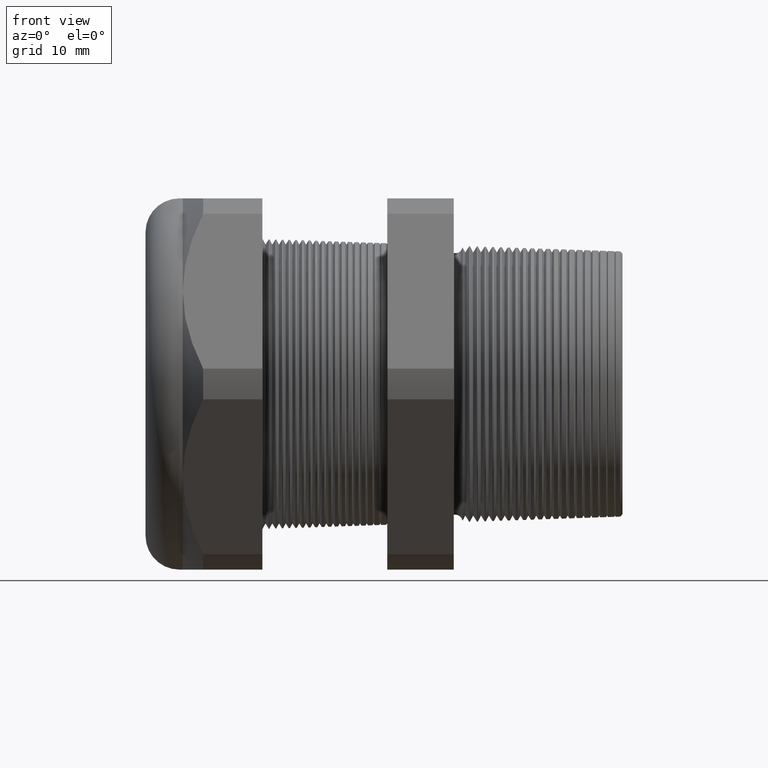
[diagram: clean part render]
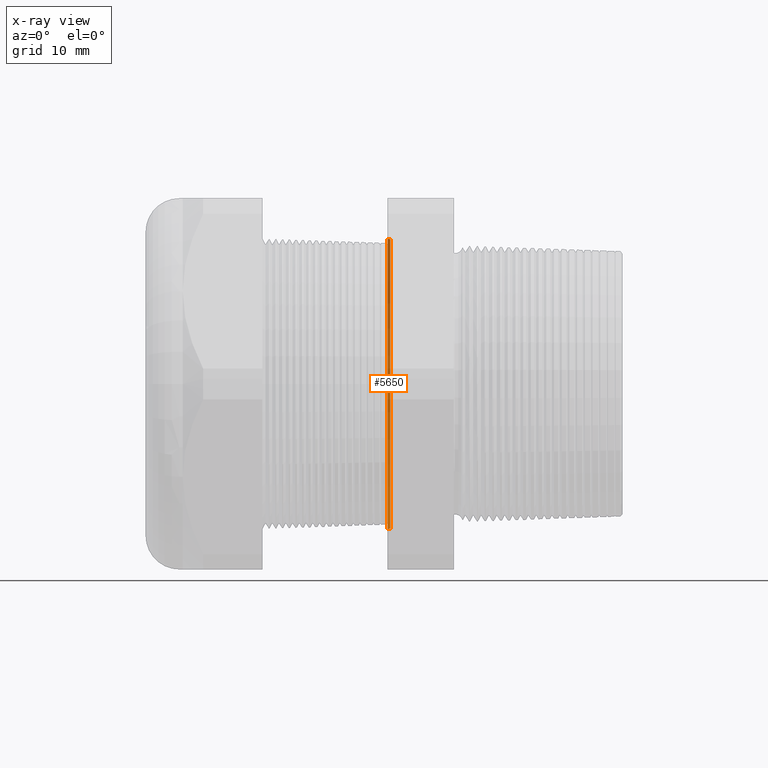
[diagram: x-ray — body ghosted, one internal face saturated and labeled with its STEP entity id]
A machine part, front view, then the same camera in x-ray: the body is ghosted and one INTERNAL B-rep face — a face not visible from any outside direction — is saturated and labeled: STEP entity #5650.
In plain terms, the highlighted conical surface has half-angle 2 deg.
Its self-contained STEP definition (entity closure, byte-faithful):
#873 = CIRCLE ( 'NONE', #933, 0.6439925383092114400 ) ;
#908 = CARTESIAN_POINT ( 'NONE',  ( -0.5914650324796660900, 7.889587091755466400E-017, -0.6439925383092114400 ) ) ;
#909 = CARTESIAN_POINT ( 'NONE',  ( -0.5914650324796660900, 0.0000000000000000000, 0.6439925383092114400 ) ) ;
#930 = DIRECTION ( 'NONE',  ( 0.0000000000000000000, 0.0000000000000000000, -1.000000000000000000 ) ) ;
#931 = DIRECTION ( 'NONE',  ( 1.000000000000000000, 0.0000000000000000000, 0.0000000000000000000 ) ) ;
#932 = CARTESIAN_POINT ( 'NONE',  ( -0.5914650324796660900, 0.0000000000000000000, 0.0000000000000000000 ) ) ;
#933 = AXIS2_PLACEMENT_3D ( 'NONE', #932, #931, #930 ) ;
#935 = CARTESIAN_POINT ( 'NONE',  ( -0.6052755905511809600, 0.0000000000000000000, 0.6444748136241792400 ) ) ;
#941 = DIRECTION ( 'NONE',  ( -0.9993908270190957600, 0.0000000000000000000, 0.03489949670249912300 ) ) ;
#942 = VECTOR ( 'NONE', #941, 39.37007874015748100 ) ;
#943 = CARTESIAN_POINT ( 'NONE',  ( -0.5914650324796660900, 0.0000000000000000000, 0.6439925383092114400 ) ) ;
#948 = LINE ( 'NONE', #943, #942 ) ;
#1303 = DIRECTION ( 'NONE',  ( -0.9993908270190957600, 4.273955692856916100E-018, -0.03489949670249912300 ) ) ;
#1304 = VECTOR ( 'NONE', #1303, 39.37007874015748100 ) ;
#1305 = CARTESIAN_POINT ( 'NONE',  ( -0.5914650324796660900, 7.886634007151551000E-017, -0.6439925383092114400 ) ) ;
#1306 = LINE ( 'NONE', #1305, #1304 ) ;
#1313 = CARTESIAN_POINT ( 'NONE',  ( -0.6052755905511809600, 7.892540176359381800E-017, -0.6444748136241792400 ) ) ;
#3717 = DIRECTION ( 'NONE',  ( 0.0000000000000000000, 0.0000000000000000000, 1.000000000000000000 ) ) ;
#3718 = DIRECTION ( 'NONE',  ( -1.000000000000000000, 0.0000000000000000000, 0.0000000000000000000 ) ) ;
#3719 = CARTESIAN_POINT ( 'NONE',  ( -0.6052755905511809600, 0.0000000000000000000, 0.0000000000000000000 ) ) ;
#3720 = AXIS2_PLACEMENT_3D ( 'NONE', #3719, #3718, #3717 ) ;
#3721 = CIRCLE ( 'NONE', #3720, 0.6444748136241791300 ) ;
#4374 = DIRECTION ( 'NONE',  ( 0.0000000000000000000, 0.0000000000000000000, 1.000000000000000000 ) ) ;
#4375 = DIRECTION ( 'NONE',  ( -1.000000000000000000, 0.0000000000000000000, 0.0000000000000000000 ) ) ;
#4376 = AXIS2_PLACEMENT_3D ( 'NONE', #4383, #4375, #4374 ) ;
#4378 = CONICAL_SURFACE ( 'NONE', #4376, 0.6439925383092114400, 0.03490658503988474500 ) ;
#4379 = FACE_OUTER_BOUND ( 'NONE', #5651, .T. ) ;
#4383 = CARTESIAN_POINT ( 'NONE',  ( -0.5914650324796660900, 0.0000000000000000000, 0.0000000000000000000 ) ) ;
#5163 = EDGE_CURVE ( 'NONE', #7324, #7493, #3721, .T. ) ;
#5650 = ADVANCED_FACE ( 'NONE', ( #4379 ), #4378, .F. ) ;
#5651 = EDGE_LOOP ( 'NONE', ( #5652, #5653, #5654, #5655 ) ) ;
#5652 = ORIENTED_EDGE ( 'NONE', *, *, #7495, .F. ) ;
#5653 = ORIENTED_EDGE ( 'NONE', *, *, #7292, .T. ) ;
#5654 = ORIENTED_EDGE ( 'NONE', *, *, #7321, .T. ) ;
#5655 = ORIENTED_EDGE ( 'NONE', *, *, #5163, .T. ) ;
#7292 = EDGE_CURVE ( 'NONE', #7302, #7301, #873, .T. ) ;
#7301 = VERTEX_POINT ( 'NONE', #909 ) ;
#7302 = VERTEX_POINT ( 'NONE', #908 ) ;
#7321 = EDGE_CURVE ( 'NONE', #7301, #7324, #948, .T. ) ;
#7324 = VERTEX_POINT ( 'NONE', #935 ) ;
#7493 = VERTEX_POINT ( 'NONE', #1313 ) ;
#7495 = EDGE_CURVE ( 'NONE', #7302, #7493, #1306, .T. ) ;